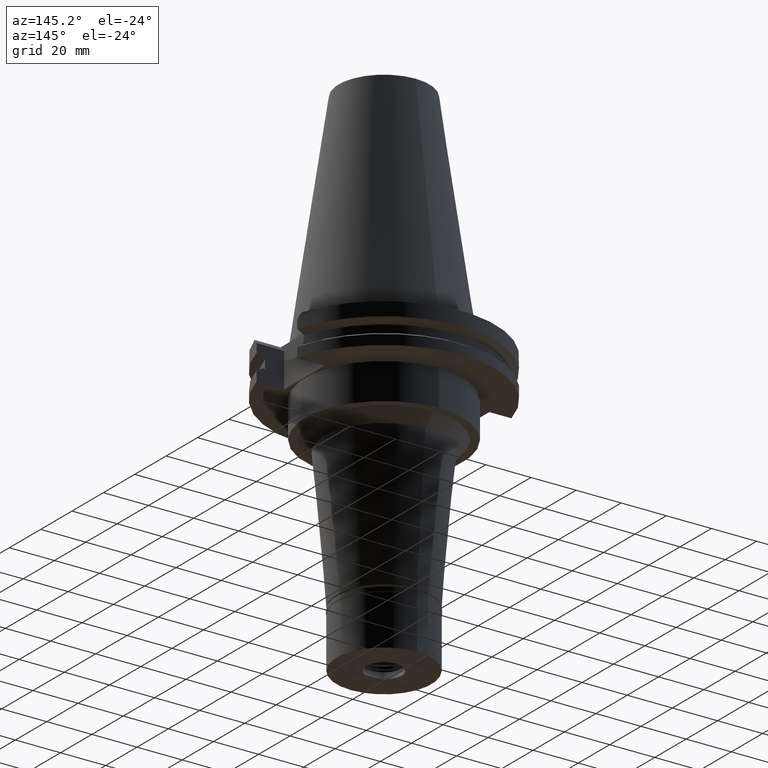
[diagram: clean part render]
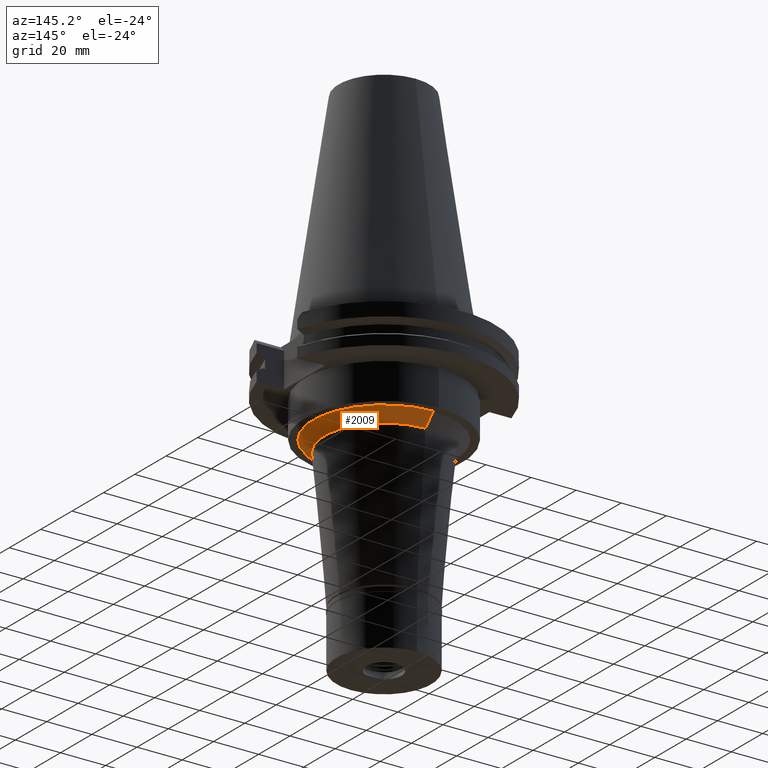
[diagram: same view with one face highlighted and labeled with its STEP entity id]
A machine part, auxiliary view. The second image highlights one B-rep face of the part: STEP entity #2009.
In plain terms, the highlighted conical surface has half-angle 45 deg.
Its self-contained STEP definition (entity closure, byte-faithful):
#30 = VERTEX_POINT ( 'NONE', #1946 ) ;
#44 = CARTESIAN_POINT ( 'NONE',  ( 0.0000000000000000000, 0.0000000000000000000, -40.00000000000000000 ) ) ;
#79 = AXIS2_PLACEMENT_3D ( 'NONE', #44, #549, #1623 ) ;
#80 = EDGE_CURVE ( 'NONE', #654, #1102, #630, .T. ) ;
#166 = EDGE_CURVE ( 'NONE', #30, #654, #1341, .T. ) ;
#194 = DIRECTION ( 'NONE',  ( 0.0000000000000000000, 1.000000000000000000, 0.0000000000000000000 ) ) ;
#268 = FACE_OUTER_BOUND ( 'NONE', #2281, .T. ) ;
#416 = VECTOR ( 'NONE', #1546, 1000.000000000000000 ) ;
#417 = DIRECTION ( 'NONE',  ( 0.0000000000000000000, 0.7071067811862969954, -0.7071067811867980391 ) ) ;
#549 = DIRECTION ( 'NONE',  ( 0.0000000000000000000, 0.0000000000000000000, 1.000000000000000000 ) ) ;
#630 = LINE ( 'NONE', #1143, #3140 ) ;
#654 = VERTEX_POINT ( 'NONE', #1770 ) ;
#885 = CARTESIAN_POINT ( 'NONE',  ( 0.0000000000000000000, -26.41554827224999968, -40.00000000000000000 ) ) ;
#887 = ORIENTED_EDGE ( 'NONE', *, *, #1436, .T. ) ;
#1102 = VERTEX_POINT ( 'NONE', #885 ) ;
#1143 = CARTESIAN_POINT ( 'NONE',  ( 0.0000000000000000000, -31.41554827224999613, -35.00000000000000000 ) ) ;
#1144 = CARTESIAN_POINT ( 'NONE',  ( 0.0000000000000000000, 26.41554827224999968, -40.00000000000000000 ) ) ;
#1226 = CONICAL_SURFACE ( 'NONE', #3257, 28.91554827224999968, 0.7853981633972997312 ) ;
#1232 = ORIENTED_EDGE ( 'NONE', *, *, #80, .T. ) ;
#1256 = ORIENTED_EDGE ( 'NONE', *, *, #1931, .F. ) ;
#1257 = DIRECTION ( 'NONE',  ( 0.0000000000000000000, 0.0000000000000000000, 1.000000000000000000 ) ) ;
#1341 = CIRCLE ( 'NONE', #3043, 31.41554827224999613 ) ;
#1396 = DIRECTION ( 'NONE',  ( 0.0000000000000000000, 1.000000000000000000, 0.0000000000000000000 ) ) ;
#1418 = VERTEX_POINT ( 'NONE', #1144 ) ;
#1436 = EDGE_CURVE ( 'NONE', #1102, #1418, #3179, .T. ) ;
#1546 = DIRECTION ( 'NONE',  ( 0.0000000000000000000, -0.7071067811862969954, -0.7071067811867980391 ) ) ;
#1577 = ORIENTED_EDGE ( 'NONE', *, *, #166, .T. ) ;
#1623 = DIRECTION ( 'NONE',  ( 0.0000000000000000000, -1.000000000000000000, 0.0000000000000000000 ) ) ;
#1770 = CARTESIAN_POINT ( 'NONE',  ( 0.0000000000000000000, -31.41554827224999613, -35.00000000000000000 ) ) ;
#1788 = LINE ( 'NONE', #3104, #416 ) ;
#1931 = EDGE_CURVE ( 'NONE', #30, #1418, #1788, .T. ) ;
#1946 = CARTESIAN_POINT ( 'NONE',  ( 0.0000000000000000000, 31.41554827224999613, -35.00000000000000000 ) ) ;
#1974 = DIRECTION ( 'NONE',  ( 0.0000000000000000000, 0.0000000000000000000, -1.000000000000000000 ) ) ;
#2009 = ADVANCED_FACE ( 'NONE', ( #268 ), #1226, .T. ) ;
#2281 = EDGE_LOOP ( 'NONE', ( #1577, #1232, #887, #1256 ) ) ;
#2826 = CARTESIAN_POINT ( 'NONE',  ( 0.0000000000000000000, 0.0000000000000000000, -37.50000000000000000 ) ) ;
#3005 = CARTESIAN_POINT ( 'NONE',  ( 0.0000000000000000000, 0.0000000000000000000, -35.00000000000000000 ) ) ;
#3043 = AXIS2_PLACEMENT_3D ( 'NONE', #3005, #1974, #1396 ) ;
#3104 = CARTESIAN_POINT ( 'NONE',  ( 0.0000000000000000000, 31.41554827224999613, -35.00000000000000000 ) ) ;
#3140 = VECTOR ( 'NONE', #417, 1000.000000000000000 ) ;
#3179 = CIRCLE ( 'NONE', #79, 26.41554827226000057 ) ;
#3257 = AXIS2_PLACEMENT_3D ( 'NONE', #2826, #1257, #194 ) ;